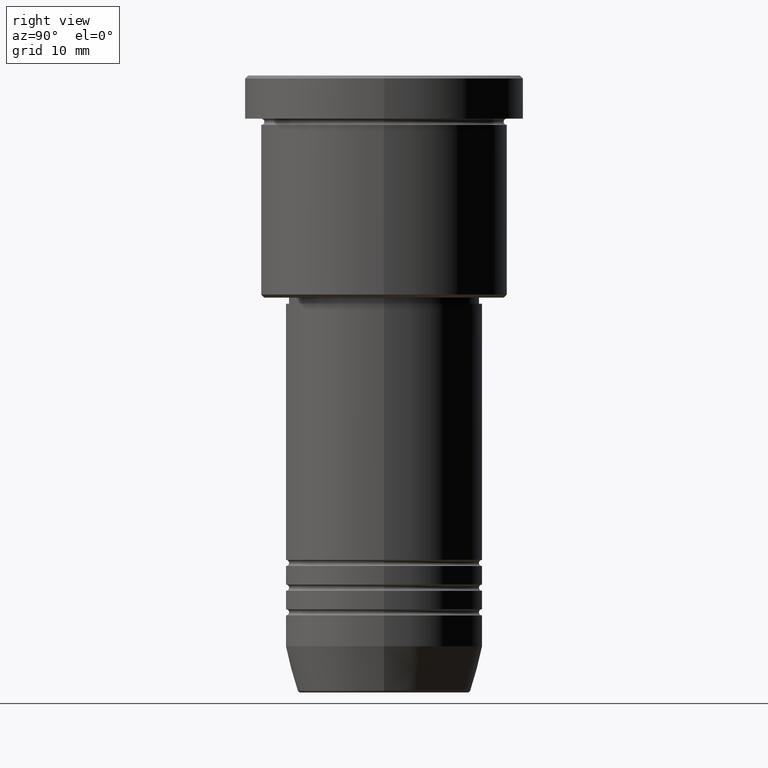
[diagram: clean part render]
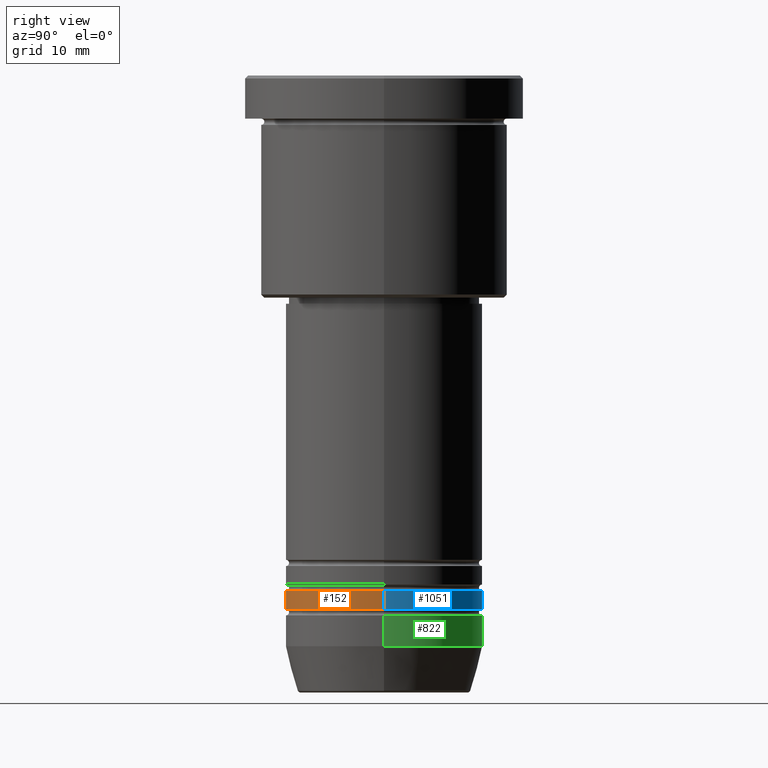
[diagram: same view with three faces highlighted in distinct colors, each labeled with its STEP entity id]
A machine part, right view with three faces highlighted in distinct colors.
Their STEP definitions:

[orange] entity #152 — the highlighted cylindrical surface (partial cylindrical patch) has radius 16 mm, axis along (-0, -0, 1).
#74 = DIRECTION ( 'NONE',  ( -0.000000000000000000, -0.000000000000000000, 1.000000000000000000 ) ) ;
#95 = CARTESIAN_POINT ( 'NONE',  ( -16.00000000000000000, 1.959434878635765131E-15, -86.49999999999998579 ) ) ;
#106 = CARTESIAN_POINT ( 'NONE',  ( -16.00000000000000000, 1.959434878635765131E-15, 0.000000000000000000 ) ) ;
#130 = AXIS2_PLACEMENT_3D ( 'NONE', #886, #1161, #875 ) ;
#148 = FACE_OUTER_BOUND ( 'NONE', #448, .T. ) ;
#149 = CIRCLE ( 'NONE', #130, 16.00000000000000000 ) ;
#152 = ADVANCED_FACE ( 'NONE', ( #148 ), #585, .T. ) ;
#158 = ORIENTED_EDGE ( 'NONE', *, *, #910, .F. ) ;
#208 = DIRECTION ( 'NONE',  ( -0.000000000000000000, -0.000000000000000000, 1.000000000000000000 ) ) ;
#236 = EDGE_CURVE ( 'NONE', #610, #965, #908, .T. ) ;
#267 = CARTESIAN_POINT ( 'NONE',  ( 16.00000000000000000, 0.000000000000000000, -83.49999999999998579 ) ) ;
#276 = AXIS2_PLACEMENT_3D ( 'NONE', #1134, #1035, #414 ) ;
#298 = VECTOR ( 'NONE', #532, 1000.000000000000000 ) ;
#364 = CARTESIAN_POINT ( 'NONE',  ( 16.00000000000000000, 0.000000000000000000, -86.49999999999998579 ) ) ;
#414 = DIRECTION ( 'NONE',  ( 1.000000000000000000, 0.000000000000000000, 0.000000000000000000 ) ) ;
#448 = EDGE_LOOP ( 'NONE', ( #660, #1165, #538, #158 ) ) ;
#461 = EDGE_CURVE ( 'NONE', #664, #1068, #792, .T. ) ;
#525 = CARTESIAN_POINT ( 'NONE',  ( -16.00000000000000000, 1.959434878635765131E-15, -83.49999999999998579 ) ) ;
#532 = DIRECTION ( 'NONE',  ( -0.000000000000000000, -0.000000000000000000, 1.000000000000000000 ) ) ;
#538 = ORIENTED_EDGE ( 'NONE', *, *, #461, .T. ) ;
#585 = CYLINDRICAL_SURFACE ( 'NONE', #276, 16.00000000000000000 ) ;
#596 = DIRECTION ( 'NONE',  ( 1.000000000000000000, 0.000000000000000000, 0.000000000000000000 ) ) ;
#610 = VERTEX_POINT ( 'NONE', #95 ) ;
#660 = ORIENTED_EDGE ( 'NONE', *, *, #236, .F. ) ;
#664 = VERTEX_POINT ( 'NONE', #364 ) ;
#680 = CARTESIAN_POINT ( 'NONE',  ( 0.000000000000000000, 0.000000000000000000, -86.49999999999998579 ) ) ;
#768 = AXIS2_PLACEMENT_3D ( 'NONE', #680, #74, #596 ) ;
#792 = LINE ( 'NONE', #974, #298 ) ;
#875 = DIRECTION ( 'NONE',  ( 1.000000000000000000, 0.000000000000000000, 0.000000000000000000 ) ) ;
#886 = CARTESIAN_POINT ( 'NONE',  ( 0.000000000000000000, 0.000000000000000000, -83.49999999999998579 ) ) ;
#908 = LINE ( 'NONE', #106, #1034 ) ;
#910 = EDGE_CURVE ( 'NONE', #965, #1068, #149, .T. ) ;
#965 = VERTEX_POINT ( 'NONE', #525 ) ;
#974 = CARTESIAN_POINT ( 'NONE',  ( 16.00000000000000000, 0.000000000000000000, 0.000000000000000000 ) ) ;
#978 = EDGE_CURVE ( 'NONE', #610, #664, #1180, .T. ) ;
#1034 = VECTOR ( 'NONE', #208, 1000.000000000000000 ) ;
#1035 = DIRECTION ( 'NONE',  ( -0.000000000000000000, -0.000000000000000000, 1.000000000000000000 ) ) ;
#1068 = VERTEX_POINT ( 'NONE', #267 ) ;
#1134 = CARTESIAN_POINT ( 'NONE',  ( 0.000000000000000000, 0.000000000000000000, 0.000000000000000000 ) ) ;
#1161 = DIRECTION ( 'NONE',  ( -0.000000000000000000, -0.000000000000000000, 1.000000000000000000 ) ) ;
#1165 = ORIENTED_EDGE ( 'NONE', *, *, #978, .T. ) ;
#1180 = CIRCLE ( 'NONE', #768, 16.00000000000000000 ) ;

[blue] entity #1051 — the highlighted cylindrical surface (partial cylindrical patch) has radius 16 mm, axis along (-0, -0, 1).
#95 = CARTESIAN_POINT ( 'NONE',  ( -16.00000000000000000, 1.959434878635765131E-15, -86.49999999999998579 ) ) ;
#106 = CARTESIAN_POINT ( 'NONE',  ( -16.00000000000000000, 1.959434878635765131E-15, 0.000000000000000000 ) ) ;
#120 = DIRECTION ( 'NONE',  ( 1.000000000000000000, 0.000000000000000000, 0.000000000000000000 ) ) ;
#146 = EDGE_LOOP ( 'NONE', ( #203, #981, #215, #1128 ) ) ;
#203 = ORIENTED_EDGE ( 'NONE', *, *, #880, .T. ) ;
#207 = CIRCLE ( 'NONE', #280, 16.00000000000000000 ) ;
#208 = DIRECTION ( 'NONE',  ( -0.000000000000000000, -0.000000000000000000, 1.000000000000000000 ) ) ;
#215 = ORIENTED_EDGE ( 'NONE', *, *, #826, .F. ) ;
#220 = DIRECTION ( 'NONE',  ( -0.000000000000000000, -0.000000000000000000, 1.000000000000000000 ) ) ;
#236 = EDGE_CURVE ( 'NONE', #610, #965, #908, .T. ) ;
#267 = CARTESIAN_POINT ( 'NONE',  ( 16.00000000000000000, 0.000000000000000000, -83.49999999999998579 ) ) ;
#280 = AXIS2_PLACEMENT_3D ( 'NONE', #579, #220, #120 ) ;
#286 = CYLINDRICAL_SURFACE ( 'NONE', #1100, 16.00000000000000000 ) ;
#298 = VECTOR ( 'NONE', #532, 1000.000000000000000 ) ;
#328 = CARTESIAN_POINT ( 'NONE',  ( 0.000000000000000000, 0.000000000000000000, -86.49999999999998579 ) ) ;
#364 = CARTESIAN_POINT ( 'NONE',  ( 16.00000000000000000, 0.000000000000000000, -86.49999999999998579 ) ) ;
#412 = DIRECTION ( 'NONE',  ( -0.000000000000000000, -0.000000000000000000, 1.000000000000000000 ) ) ;
#431 = DIRECTION ( 'NONE',  ( 1.000000000000000000, 0.000000000000000000, 0.000000000000000000 ) ) ;
#461 = EDGE_CURVE ( 'NONE', #664, #1068, #792, .T. ) ;
#474 = AXIS2_PLACEMENT_3D ( 'NONE', #328, #412, #431 ) ;
#525 = CARTESIAN_POINT ( 'NONE',  ( -16.00000000000000000, 1.959434878635765131E-15, -83.49999999999998579 ) ) ;
#532 = DIRECTION ( 'NONE',  ( -0.000000000000000000, -0.000000000000000000, 1.000000000000000000 ) ) ;
#579 = CARTESIAN_POINT ( 'NONE',  ( 0.000000000000000000, 0.000000000000000000, -83.49999999999998579 ) ) ;
#610 = VERTEX_POINT ( 'NONE', #95 ) ;
#664 = VERTEX_POINT ( 'NONE', #364 ) ;
#792 = LINE ( 'NONE', #974, #298 ) ;
#809 = FACE_OUTER_BOUND ( 'NONE', #146, .T. ) ;
#814 = CARTESIAN_POINT ( 'NONE',  ( 0.000000000000000000, 0.000000000000000000, 0.000000000000000000 ) ) ;
#826 = EDGE_CURVE ( 'NONE', #1068, #965, #207, .T. ) ;
#880 = EDGE_CURVE ( 'NONE', #664, #610, #1080, .T. ) ;
#908 = LINE ( 'NONE', #106, #1034 ) ;
#965 = VERTEX_POINT ( 'NONE', #525 ) ;
#974 = CARTESIAN_POINT ( 'NONE',  ( 16.00000000000000000, 0.000000000000000000, 0.000000000000000000 ) ) ;
#981 = ORIENTED_EDGE ( 'NONE', *, *, #236, .T. ) ;
#1001 = DIRECTION ( 'NONE',  ( 1.000000000000000000, 0.000000000000000000, 0.000000000000000000 ) ) ;
#1006 = DIRECTION ( 'NONE',  ( -0.000000000000000000, -0.000000000000000000, 1.000000000000000000 ) ) ;
#1034 = VECTOR ( 'NONE', #208, 1000.000000000000000 ) ;
#1051 = ADVANCED_FACE ( 'NONE', ( #809 ), #286, .T. ) ;
#1068 = VERTEX_POINT ( 'NONE', #267 ) ;
#1080 = CIRCLE ( 'NONE', #474, 16.00000000000000000 ) ;
#1100 = AXIS2_PLACEMENT_3D ( 'NONE', #814, #1006, #1001 ) ;
#1128 = ORIENTED_EDGE ( 'NONE', *, *, #461, .F. ) ;

[green] entity #822 — the highlighted cylindrical surface (partial cylindrical patch) has radius 16 mm, axis along (-0, -0, 1).
#53 = AXIS2_PLACEMENT_3D ( 'NONE', #555, #548, #441 ) ;
#164 = EDGE_CURVE ( 'NONE', #750, #554, #1153, .T. ) ;
#273 = LINE ( 'NONE', #815, #386 ) ;
#292 = DIRECTION ( 'NONE',  ( -0.000000000000000000, -0.000000000000000000, 1.000000000000000000 ) ) ;
#297 = CARTESIAN_POINT ( 'NONE',  ( -16.00000000000000000, 1.959434878635765131E-15, -92.50000000000000000 ) ) ;
#312 = DIRECTION ( 'NONE',  ( -0.000000000000000000, -0.000000000000000000, 1.000000000000000000 ) ) ;
#317 = CIRCLE ( 'NONE', #53, 16.00000000000000000 ) ;
#347 = CARTESIAN_POINT ( 'NONE',  ( 0.000000000000000000, 0.000000000000000000, -87.50000000000000000 ) ) ;
#386 = VECTOR ( 'NONE', #292, 1000.000000000000000 ) ;
#402 = DIRECTION ( 'NONE',  ( 1.000000000000000000, 0.000000000000000000, 0.000000000000000000 ) ) ;
#436 = DIRECTION ( 'NONE',  ( -0.000000000000000000, -0.000000000000000000, 1.000000000000000000 ) ) ;
#441 = DIRECTION ( 'NONE',  ( 1.000000000000000000, 0.000000000000000000, 0.000000000000000000 ) ) ;
#442 = EDGE_CURVE ( 'NONE', #595, #554, #744, .T. ) ;
#443 = CARTESIAN_POINT ( 'NONE',  ( -16.00000000000000000, 1.959434878635765131E-15, -87.50000000000000000 ) ) ;
#462 = ORIENTED_EDGE ( 'NONE', *, *, #164, .T. ) ;
#515 = VERTEX_POINT ( 'NONE', #1058 ) ;
#548 = DIRECTION ( 'NONE',  ( -0.000000000000000000, -0.000000000000000000, 1.000000000000000000 ) ) ;
#554 = VERTEX_POINT ( 'NONE', #443 ) ;
#555 = CARTESIAN_POINT ( 'NONE',  ( 0.000000000000000000, 0.000000000000000000, -92.50000000000000000 ) ) ;
#587 = FACE_OUTER_BOUND ( 'NONE', #926, .T. ) ;
#595 = VERTEX_POINT ( 'NONE', #737 ) ;
#603 = EDGE_CURVE ( 'NONE', #515, #595, #273, .T. ) ;
#605 = DIRECTION ( 'NONE',  ( -0.000000000000000000, -0.000000000000000000, 1.000000000000000000 ) ) ;
#686 = CARTESIAN_POINT ( 'NONE',  ( -16.00000000000000000, 1.959434878635765131E-15, 0.000000000000000000 ) ) ;
#697 = DIRECTION ( 'NONE',  ( 1.000000000000000000, 0.000000000000000000, 0.000000000000000000 ) ) ;
#737 = CARTESIAN_POINT ( 'NONE',  ( 16.00000000000000000, 0.000000000000000000, -87.50000000000000000 ) ) ;
#744 = CIRCLE ( 'NONE', #856, 16.00000000000000000 ) ;
#747 = CYLINDRICAL_SURFACE ( 'NONE', #975, 16.00000000000000000 ) ;
#750 = VERTEX_POINT ( 'NONE', #297 ) ;
#815 = CARTESIAN_POINT ( 'NONE',  ( 16.00000000000000000, 0.000000000000000000, 0.000000000000000000 ) ) ;
#822 = ADVANCED_FACE ( 'NONE', ( #587 ), #747, .T. ) ;
#850 = CARTESIAN_POINT ( 'NONE',  ( 0.000000000000000000, 0.000000000000000000, 0.000000000000000000 ) ) ;
#856 = AXIS2_PLACEMENT_3D ( 'NONE', #347, #436, #697 ) ;
#872 = ORIENTED_EDGE ( 'NONE', *, *, #1082, .T. ) ;
#926 = EDGE_LOOP ( 'NONE', ( #872, #462, #1143, #1137 ) ) ;
#975 = AXIS2_PLACEMENT_3D ( 'NONE', #850, #312, #402 ) ;
#1058 = CARTESIAN_POINT ( 'NONE',  ( 16.00000000000000000, 0.000000000000000000, -92.50000000000000000 ) ) ;
#1076 = VECTOR ( 'NONE', #605, 1000.000000000000000 ) ;
#1082 = EDGE_CURVE ( 'NONE', #515, #750, #317, .T. ) ;
#1137 = ORIENTED_EDGE ( 'NONE', *, *, #603, .F. ) ;
#1143 = ORIENTED_EDGE ( 'NONE', *, *, #442, .F. ) ;
#1153 = LINE ( 'NONE', #686, #1076 ) ;